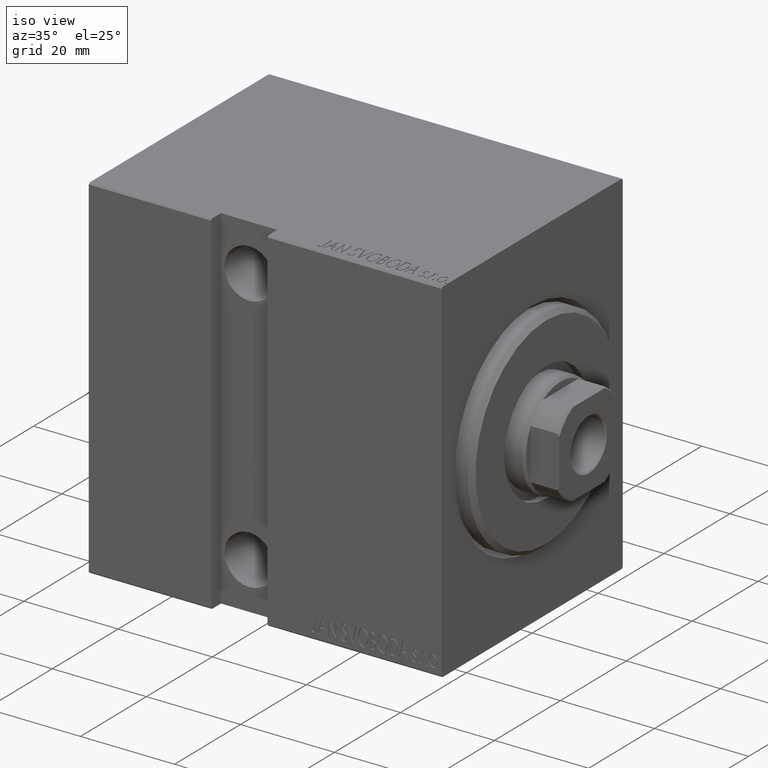
[diagram: clean part render]
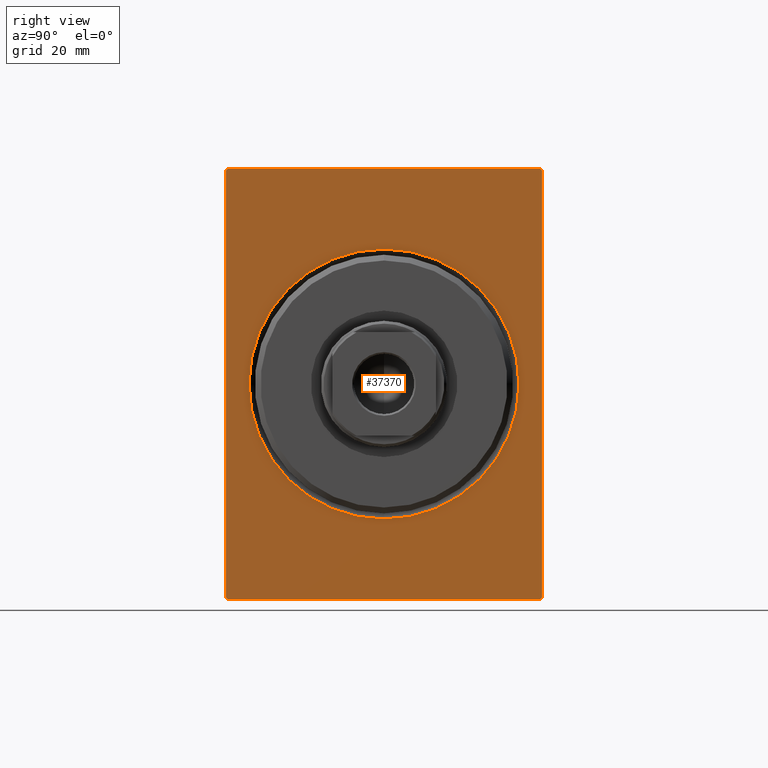
[diagram: tour spotlight — one face highlighted and labeled with its STEP entity id]
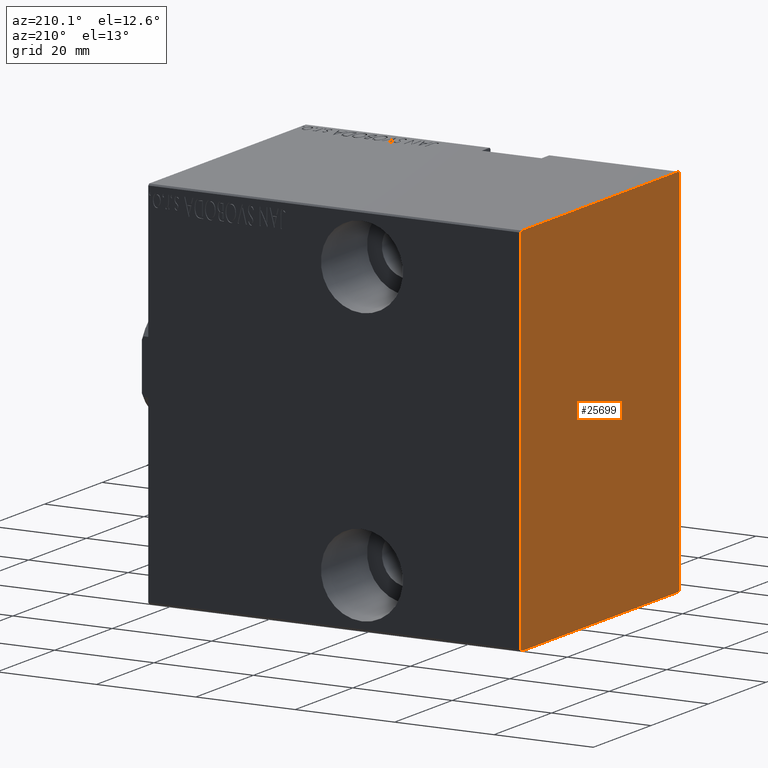
[diagram: tour spotlight — one face highlighted and labeled with its STEP entity id]
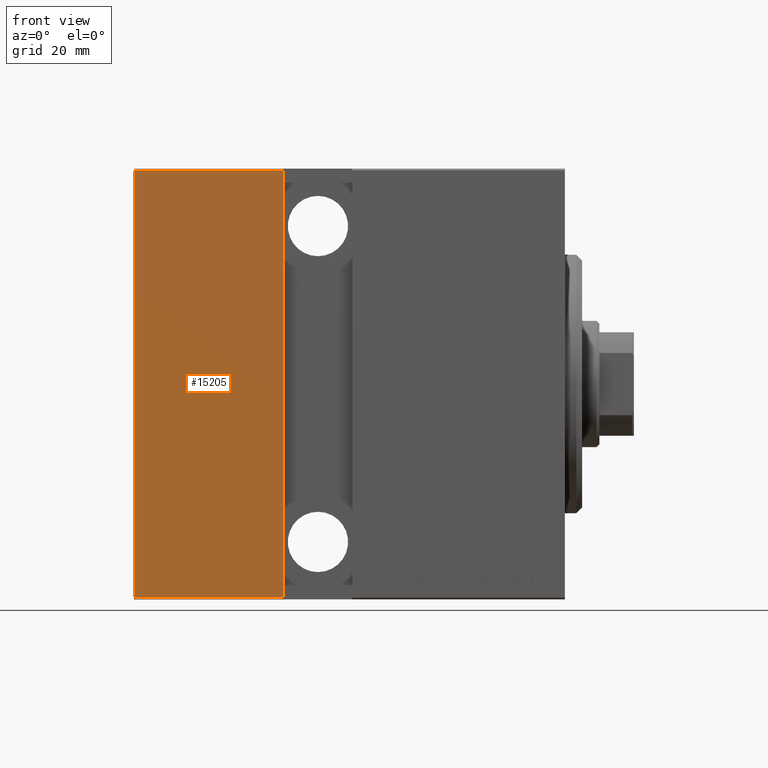
[diagram: tour spotlight — one face highlighted and labeled with its STEP entity id]
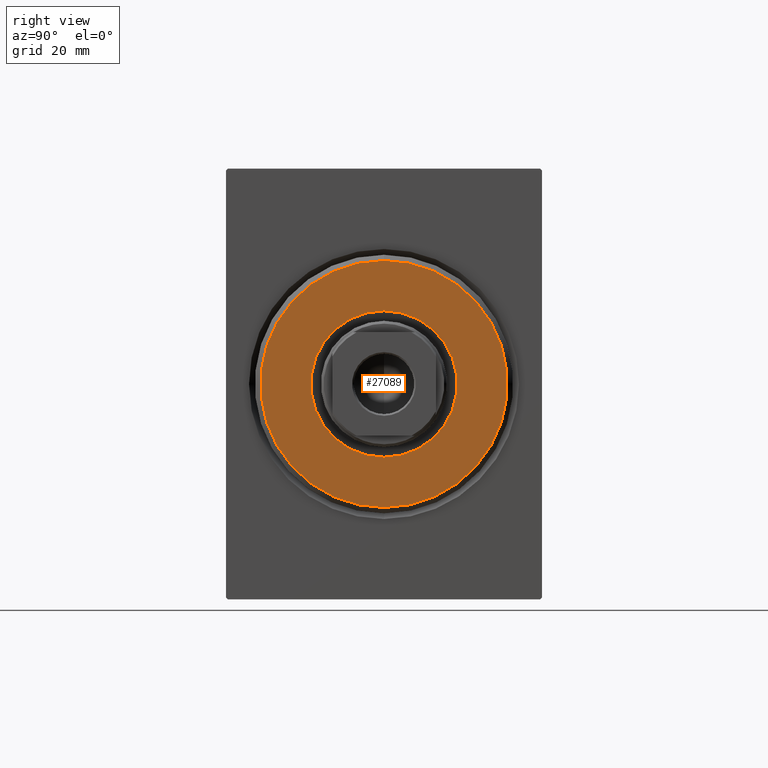
[diagram: tour spotlight — one face highlighted and labeled with its STEP entity id]
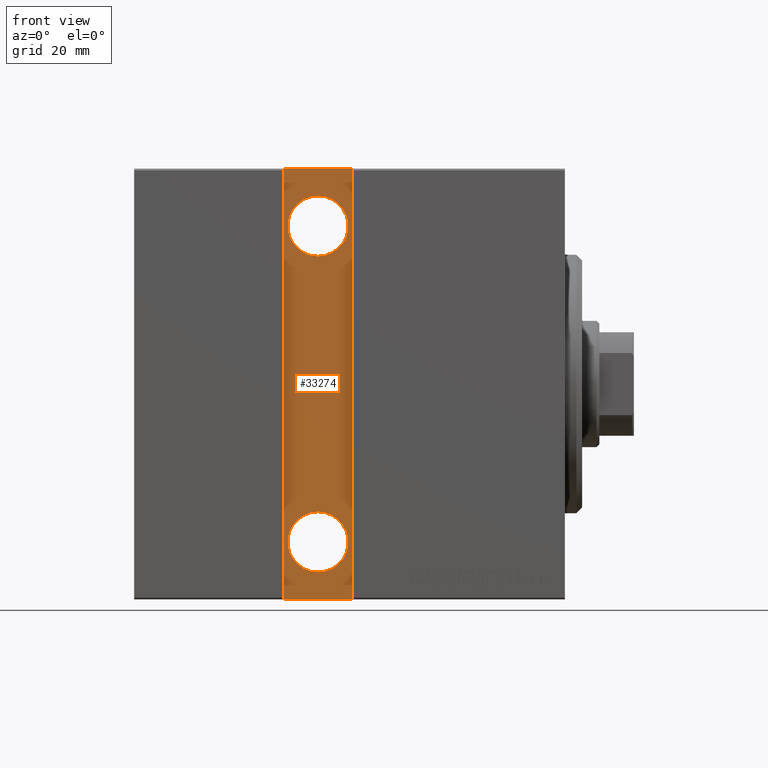
[diagram: tour spotlight — one face highlighted and labeled with its STEP entity id]
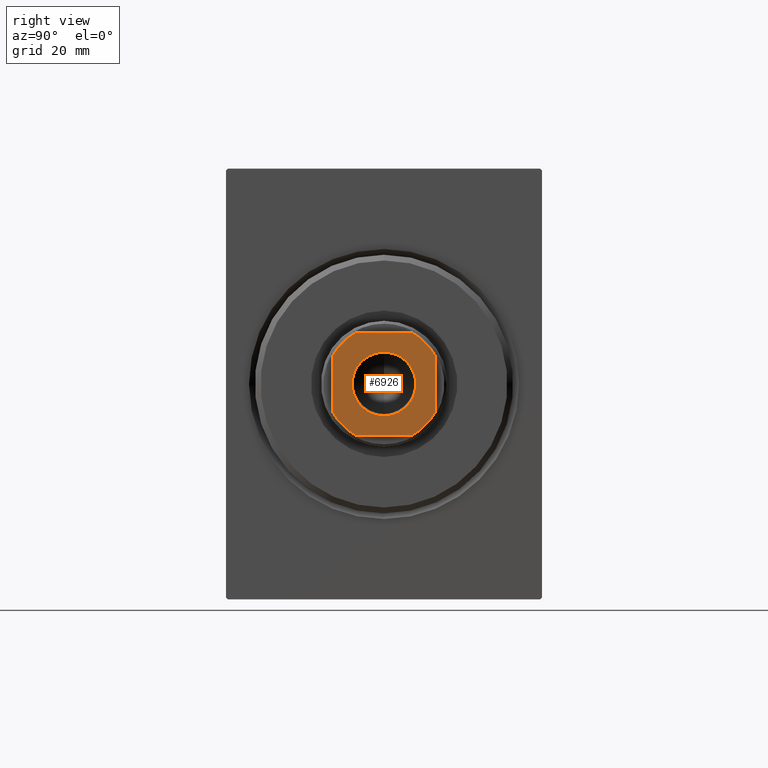
[diagram: tour spotlight — one face highlighted and labeled with its STEP entity id]
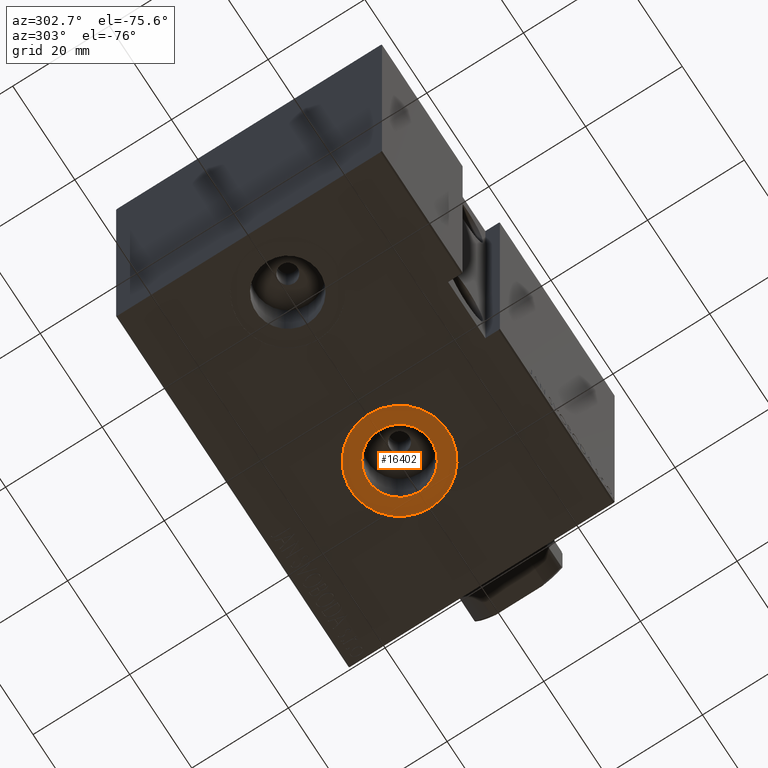
[diagram: tour spotlight — one face highlighted and labeled with its STEP entity id]
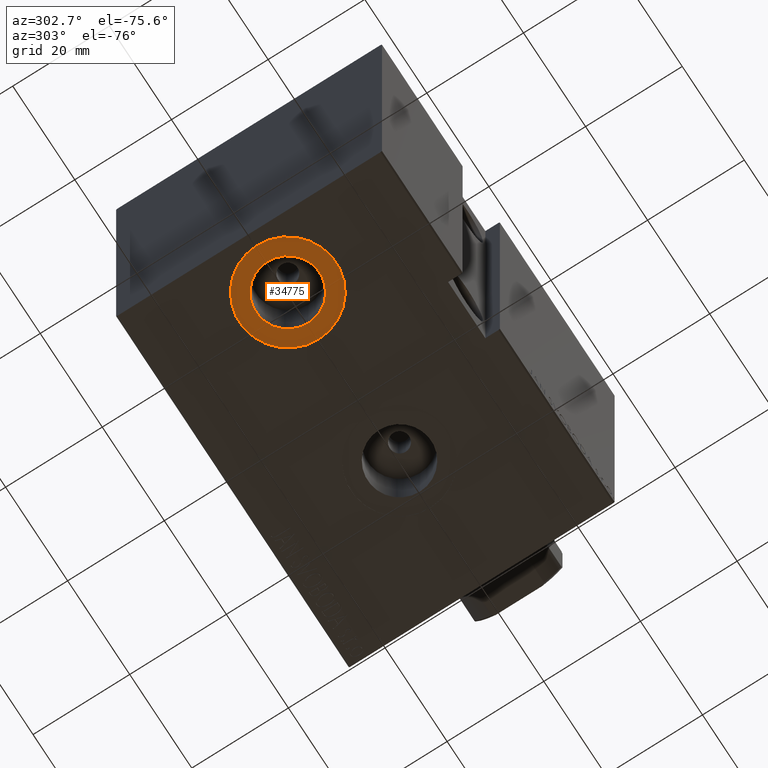
[diagram: tour spotlight — one face highlighted and labeled with its STEP entity id]
A machine part: a face-by-face anatomy tour. The part has 845 B-rep faces; the first image is the clean iso view, then the 8 largest visible faces are spotlighted one at a time (largest first), each with its STEP entity span.

Face 1 — right view, entity #37370. In plain terms, the highlighted planar face has unit normal (-1, 0, 0).
Definition (entity closure, byte-faithful):
#155 = CARTESIAN_POINT ( 'NONE',  ( 0.000000000000000000, 2.877919977996280715E-15, -23.50000000000000355 ) ) ;
#479 = VERTEX_POINT ( 'NONE', #7890 ) ;
#1505 = VERTEX_POINT ( 'NONE', #19122 ) ;
#1952 = LINE ( 'NONE', #24833, #28621 ) ;
#2173 = VECTOR ( 'NONE', #12814, 1000.000000000000000 ) ;
#2742 = VECTOR ( 'NONE', #35488, 1000.000000000000000 ) ;
#2763 = VERTEX_POINT ( 'NONE', #10412 ) ;
#4493 = DIRECTION ( 'NONE',  ( 0.000000000000000000, 0.000000000000000000, -1.000000000000000000 ) ) ;
#4976 = EDGE_LOOP ( 'NONE', ( #27891, #37800 ) ) ;
#5131 = AXIS2_PLACEMENT_3D ( 'NONE', #41469, #8624, #37607 ) ;
#5911 = CARTESIAN_POINT ( 'NONE',  ( 0.000000000000000000, 27.49999999999999645, 37.50000000000000711 ) ) ;
#5957 = VECTOR ( 'NONE', #13554, 1000.000000000000114 ) ;
#6078 = DIRECTION ( 'NONE',  ( 0.000000000000000000, 0.000000000000000000, -1.000000000000000000 ) ) ;
#6191 = EDGE_CURVE ( 'NONE', #18025, #8475, #6528, .T. ) ;
#6286 = ORIENTED_EDGE ( 'NONE', *, *, #31001, .F. ) ;
#6528 = CIRCLE ( 'NONE', #5131, 23.50000000000000355 ) ;
#7283 = EDGE_CURVE ( 'NONE', #479, #37008, #29175, .T. ) ;
#7362 = FACE_BOUND ( 'NONE', #4976, .T. ) ;
#7517 = DIRECTION ( 'NONE',  ( -0.000000000000000000, 0.7071067811865515695, 0.7071067811865435759 ) ) ;
#7739 = EDGE_LOOP ( 'NONE', ( #11058, #39362, #42311, #15611, #33319, #34031, #6286, #24181 ) ) ;
#7890 = CARTESIAN_POINT ( 'NONE',  ( 0.000000000000000000, -27.19999999999999218, -37.50000000000000711 ) ) ;
#8078 = CARTESIAN_POINT ( 'NONE',  ( 0.000000000000000000, 27.20000000000000284, 37.50000000000000711 ) ) ;
#8409 = PLANE ( 'NONE',  #41018 ) ;
#8475 = VERTEX_POINT ( 'NONE', #38750 ) ;
#8624 = DIRECTION ( 'NONE',  ( 1.000000000000000000, 0.000000000000000000, 0.000000000000000000 ) ) ;
#10412 = CARTESIAN_POINT ( 'NONE',  ( 0.000000000000000000, 27.49999999999999645, 37.20000000000000995 ) ) ;
#10454 = LINE ( 'NONE', #8078, #40243 ) ;
#11058 = ORIENTED_EDGE ( 'NONE', *, *, #25345, .F. ) ;
#11577 = VERTEX_POINT ( 'NONE', #21858 ) ;
#12814 = DIRECTION ( 'NONE',  ( 0.000000000000000000, -1.000000000000000000, -2.523234146875355998E-16 ) ) ;
#13554 = DIRECTION ( 'NONE',  ( -0.000000000000000000, -0.7071067811865474617, 0.7071067811865474617 ) ) ;
#15070 = VECTOR ( 'NONE', #7517, 999.9999999999998863 ) ;
#15611 = ORIENTED_EDGE ( 'NONE', *, *, #25560, .T. ) ;
#16201 = EDGE_CURVE ( 'NONE', #26997, #1505, #21322, .T. ) ;
#16508 = CARTESIAN_POINT ( 'NONE',  ( 0.000000000000000000, 27.19999999999999929, -37.50000000000000711 ) ) ;
#17295 = FACE_OUTER_BOUND ( 'NONE', #7739, .T. ) ;
#17367 = DIRECTION ( 'NONE',  ( -0.000000000000000000, 0.7071067811865474617, -0.7071067811865474617 ) ) ;
#18025 = VERTEX_POINT ( 'NONE', #155 ) ;
#18401 = DIRECTION ( 'NONE',  ( 1.000000000000000000, 0.000000000000000000, 0.000000000000000000 ) ) ;
#18788 = DIRECTION ( 'NONE',  ( 0.000000000000000000, 1.000000000000000000, 0.000000000000000000 ) ) ;
#19122 = CARTESIAN_POINT ( 'NONE',  ( 0.000000000000000000, -27.20000000000000284, 37.49999999999999289 ) ) ;
#19468 = DIRECTION ( 'NONE',  ( 0.000000000000000000, -0.7071067811865434649, -0.7071067811865516806 ) ) ;
#20082 = EDGE_CURVE ( 'NONE', #11577, #2763, #25958, .T. ) ;
#20265 = CARTESIAN_POINT ( 'NONE',  ( 0.000000000000000000, -27.19999999999999218, -37.50000000000000711 ) ) ;
#20702 = LINE ( 'NONE', #33672, #20855 ) ;
#20855 = VECTOR ( 'NONE', #4493, 1000.000000000000000 ) ;
#21322 = LINE ( 'NONE', #30618, #15070 ) ;
#21858 = CARTESIAN_POINT ( 'NONE',  ( 0.000000000000000000, 27.50000000000000355, -37.19999999999999574 ) ) ;
#22109 = LINE ( 'NONE', #5911, #2173 ) ;
#22257 = AXIS2_PLACEMENT_3D ( 'NONE', #22492, #18401, #6078 ) ;
#22492 = CARTESIAN_POINT ( 'NONE',  ( 0.000000000000000000, 0.000000000000000000, 0.000000000000000000 ) ) ;
#23550 = VECTOR ( 'NONE', #19468, 1000.000000000000000 ) ;
#23605 = CARTESIAN_POINT ( 'NONE',  ( 0.000000000000000000, -27.50000000000000000, -37.19999999999999574 ) ) ;
#24181 = ORIENTED_EDGE ( 'NONE', *, *, #16201, .T. ) ;
#24399 = CARTESIAN_POINT ( 'NONE',  ( 0.000000000000000000, 0.000000000000000000, 0.000000000000000000 ) ) ;
#24833 = CARTESIAN_POINT ( 'NONE',  ( 0.000000000000000000, -27.50000000000000000, -37.50000000000000711 ) ) ;
#25345 = EDGE_CURVE ( 'NONE', #40722, #1505, #22109, .T. ) ;
#25560 = EDGE_CURVE ( 'NONE', #11577, #39040, #39122, .T. ) ;
#25958 = LINE ( 'NONE', #41543, #2742 ) ;
#26997 = VERTEX_POINT ( 'NONE', #37915 ) ;
#27222 = DIRECTION ( 'NONE',  ( 1.000000000000000000, 0.000000000000000000, 0.000000000000000000 ) ) ;
#27850 = DIRECTION ( 'NONE',  ( 0.000000000000000000, 0.000000000000000000, -1.000000000000000000 ) ) ;
#27891 = ORIENTED_EDGE ( 'NONE', *, *, #28241, .T. ) ;
#28241 = EDGE_CURVE ( 'NONE', #8475, #18025, #28346, .T. ) ;
#28346 = CIRCLE ( 'NONE', #22257, 23.50000000000000355 ) ;
#28621 = VECTOR ( 'NONE', #18788, 1000.000000000000000 ) ;
#29175 = LINE ( 'NONE', #20265, #5957 ) ;
#30618 = CARTESIAN_POINT ( 'NONE',  ( 0.000000000000000000, -27.50000000000000000, 37.19999999999999574 ) ) ;
#31001 = EDGE_CURVE ( 'NONE', #26997, #37008, #20702, .T. ) ;
#33319 = ORIENTED_EDGE ( 'NONE', *, *, #40485, .F. ) ;
#33672 = CARTESIAN_POINT ( 'NONE',  ( 0.000000000000000000, -27.50000000000000000, 37.49999999999999289 ) ) ;
#34031 = ORIENTED_EDGE ( 'NONE', *, *, #7283, .T. ) ;
#35089 = EDGE_CURVE ( 'NONE', #40722, #2763, #10454, .T. ) ;
#35488 = DIRECTION ( 'NONE',  ( 0.000000000000000000, -9.251858538542970348E-17, 1.000000000000000000 ) ) ;
#35888 = CARTESIAN_POINT ( 'NONE',  ( 0.000000000000000000, 27.50000000000000355, -37.19999999999999574 ) ) ;
#37008 = VERTEX_POINT ( 'NONE', #23605 ) ;
#37370 = ADVANCED_FACE ( 'NONE', ( #7362, #17295 ), #8409, .F. ) ;
#37607 = DIRECTION ( 'NONE',  ( 0.000000000000000000, 0.000000000000000000, -1.000000000000000000 ) ) ;
#37800 = ORIENTED_EDGE ( 'NONE', *, *, #6191, .T. ) ;
#37915 = CARTESIAN_POINT ( 'NONE',  ( 0.000000000000000000, -27.50000000000000000, 37.19999999999999574 ) ) ;
#38750 = CARTESIAN_POINT ( 'NONE',  ( 0.000000000000000000, 0.000000000000000000, 23.50000000000000355 ) ) ;
#39040 = VERTEX_POINT ( 'NONE', #16508 ) ;
#39122 = LINE ( 'NONE', #35888, #23550 ) ;
#39362 = ORIENTED_EDGE ( 'NONE', *, *, #35089, .T. ) ;
#40243 = VECTOR ( 'NONE', #17367, 1000.000000000000114 ) ;
#40485 = EDGE_CURVE ( 'NONE', #479, #39040, #1952, .T. ) ;
#40722 = VERTEX_POINT ( 'NONE', #40752 ) ;
#40752 = CARTESIAN_POINT ( 'NONE',  ( 0.000000000000000000, 27.20000000000000284, 37.50000000000000711 ) ) ;
#41018 = AXIS2_PLACEMENT_3D ( 'NONE', #24399, #27222, #27850 ) ;
#41469 = CARTESIAN_POINT ( 'NONE',  ( 0.000000000000000000, 0.000000000000000000, 0.000000000000000000 ) ) ;
#41543 = CARTESIAN_POINT ( 'NONE',  ( 0.000000000000000000, 27.50000000000000355, -37.50000000000000711 ) ) ;
#42311 = ORIENTED_EDGE ( 'NONE', *, *, #20082, .F. ) ;

Face 2 — auxiliary view, entity #25699. In plain terms, the highlighted planar face has unit normal (-1, 0, 0).
Definition (entity closure, byte-faithful):
#186 = CARTESIAN_POINT ( 'NONE',  ( 75.00000000000000000, 27.20000000000000284, 37.50000000000000711 ) ) ;
#675 = CARTESIAN_POINT ( 'NONE',  ( 75.00000000000000000, -27.50000000000000000, -37.50000000000000711 ) ) ;
#1608 = EDGE_CURVE ( 'NONE', #27363, #28622, #20775, .T. ) ;
#2455 = CARTESIAN_POINT ( 'NONE',  ( 75.00000000000000000, -27.50000000000000000, 37.19999999999999574 ) ) ;
#3259 = DIRECTION ( 'NONE',  ( 1.000000000000000000, 0.000000000000000000, 0.000000000000000000 ) ) ;
#3649 = DIRECTION ( 'NONE',  ( 0.000000000000000000, -9.251858538542970348E-17, 1.000000000000000000 ) ) ;
#3910 = LINE ( 'NONE', #675, #10237 ) ;
#4332 = CARTESIAN_POINT ( 'NONE',  ( 75.00000000000000000, -27.19999999999999218, -37.50000000000000711 ) ) ;
#4467 = EDGE_CURVE ( 'NONE', #5598, #42629, #18697, .T. ) ;
#5185 = EDGE_LOOP ( 'NONE', ( #15250, #13867, #32874, #19264, #12700, #36527, #14762, #13233 ) ) ;
#5598 = VERTEX_POINT ( 'NONE', #2455 ) ;
#6906 = LINE ( 'NONE', #33252, #35582 ) ;
#6936 = CARTESIAN_POINT ( 'NONE',  ( 75.00000000000000000, 27.49999999999999645, 37.20000000000000995 ) ) ;
#7454 = VECTOR ( 'NONE', #31430, 1000.000000000000114 ) ;
#8253 = VERTEX_POINT ( 'NONE', #6936 ) ;
#8847 = VECTOR ( 'NONE', #31997, 999.9999999999998863 ) ;
#9938 = EDGE_CURVE ( 'NONE', #42629, #38356, #24603, .T. ) ;
#10162 = PLANE ( 'NONE',  #14612 ) ;
#10237 = VECTOR ( 'NONE', #20760, 1000.000000000000000 ) ;
#11351 = LINE ( 'NONE', #34263, #7454 ) ;
#12515 = CARTESIAN_POINT ( 'NONE',  ( 75.00000000000000000, 27.19999999999999929, -37.50000000000000711 ) ) ;
#12700 = ORIENTED_EDGE ( 'NONE', *, *, #24860, .T. ) ;
#13233 = ORIENTED_EDGE ( 'NONE', *, *, #9938, .T. ) ;
#13867 = ORIENTED_EDGE ( 'NONE', *, *, #1608, .T. ) ;
#13974 = EDGE_CURVE ( 'NONE', #8253, #38205, #11351, .T. ) ;
#14612 = AXIS2_PLACEMENT_3D ( 'NONE', #36961, #3259, #39767 ) ;
#14762 = ORIENTED_EDGE ( 'NONE', *, *, #4467, .T. ) ;
#15250 = ORIENTED_EDGE ( 'NONE', *, *, #16842, .T. ) ;
#15269 = CARTESIAN_POINT ( 'NONE',  ( 75.00000000000000000, -27.20000000000000284, 37.49999999999999289 ) ) ;
#16096 = EDGE_CURVE ( 'NONE', #22891, #5598, #25715, .T. ) ;
#16829 = CARTESIAN_POINT ( 'NONE',  ( 75.00000000000000000, 27.50000000000000355, -37.19999999999999574 ) ) ;
#16842 = EDGE_CURVE ( 'NONE', #38356, #27363, #3910, .T. ) ;
#18047 = VECTOR ( 'NONE', #18085, 1000.000000000000000 ) ;
#18085 = DIRECTION ( 'NONE',  ( 0.000000000000000000, -1.000000000000000000, -2.523234146875355998E-16 ) ) ;
#18697 = LINE ( 'NONE', #31458, #27824 ) ;
#19264 = ORIENTED_EDGE ( 'NONE', *, *, #13974, .T. ) ;
#20495 = VECTOR ( 'NONE', #31099, 1000.000000000000114 ) ;
#20760 = DIRECTION ( 'NONE',  ( 0.000000000000000000, 1.000000000000000000, 0.000000000000000000 ) ) ;
#20775 = LINE ( 'NONE', #28083, #29153 ) ;
#21738 = CARTESIAN_POINT ( 'NONE',  ( 75.00000000000000000, 27.49999999999999645, 37.50000000000000711 ) ) ;
#22001 = CARTESIAN_POINT ( 'NONE',  ( 75.00000000000000000, -32.34999999999999432, -32.34999999999999432 ) ) ;
#22891 = VERTEX_POINT ( 'NONE', #15269 ) ;
#24603 = LINE ( 'NONE', #22001, #20495 ) ;
#24860 = EDGE_CURVE ( 'NONE', #38205, #22891, #31888, .T. ) ;
#25383 = DIRECTION ( 'NONE',  ( 0.000000000000000000, 0.000000000000000000, -1.000000000000000000 ) ) ;
#25699 = ADVANCED_FACE ( 'NONE', ( #29820 ), #10162, .T. ) ;
#25715 = LINE ( 'NONE', #28314, #8847 ) ;
#27363 = VERTEX_POINT ( 'NONE', #12515 ) ;
#27824 = VECTOR ( 'NONE', #25383, 1000.000000000000000 ) ;
#28083 = CARTESIAN_POINT ( 'NONE',  ( 75.00000000000000000, 32.35000000000016485, -32.34999999999978826 ) ) ;
#28314 = CARTESIAN_POINT ( 'NONE',  ( 75.00000000000000000, -32.34999999999983800, 32.35000000000021458 ) ) ;
#28622 = VERTEX_POINT ( 'NONE', #16829 ) ;
#29153 = VECTOR ( 'NONE', #37828, 1000.000000000000000 ) ;
#29633 = CARTESIAN_POINT ( 'NONE',  ( 75.00000000000000000, -27.50000000000000000, -37.19999999999999574 ) ) ;
#29820 = FACE_OUTER_BOUND ( 'NONE', #5185, .T. ) ;
#31099 = DIRECTION ( 'NONE',  ( -0.000000000000000000, 0.7071067811865474617, -0.7071067811865474617 ) ) ;
#31430 = DIRECTION ( 'NONE',  ( -0.000000000000000000, -0.7071067811865474617, 0.7071067811865474617 ) ) ;
#31458 = CARTESIAN_POINT ( 'NONE',  ( 75.00000000000000000, -27.50000000000000000, 37.49999999999999289 ) ) ;
#31888 = LINE ( 'NONE', #21738, #18047 ) ;
#31997 = DIRECTION ( 'NONE',  ( 0.000000000000000000, -0.7071067811865515695, -0.7071067811865435759 ) ) ;
#32874 = ORIENTED_EDGE ( 'NONE', *, *, #41764, .T. ) ;
#33252 = CARTESIAN_POINT ( 'NONE',  ( 75.00000000000000000, 27.50000000000000355, -37.50000000000000711 ) ) ;
#34263 = CARTESIAN_POINT ( 'NONE',  ( 75.00000000000000000, 32.35000000000000142, 32.35000000000000142 ) ) ;
#35582 = VECTOR ( 'NONE', #3649, 1000.000000000000000 ) ;
#36527 = ORIENTED_EDGE ( 'NONE', *, *, #16096, .T. ) ;
#36961 = CARTESIAN_POINT ( 'NONE',  ( 75.00000000000000000, 0.000000000000000000, 0.000000000000000000 ) ) ;
#37828 = DIRECTION ( 'NONE',  ( -0.000000000000000000, 0.7071067811865434649, 0.7071067811865516806 ) ) ;
#38205 = VERTEX_POINT ( 'NONE', #186 ) ;
#38356 = VERTEX_POINT ( 'NONE', #4332 ) ;
#39767 = DIRECTION ( 'NONE',  ( 0.000000000000000000, 0.000000000000000000, -1.000000000000000000 ) ) ;
#41764 = EDGE_CURVE ( 'NONE', #28622, #8253, #6906, .T. ) ;
#42629 = VERTEX_POINT ( 'NONE', #29633 ) ;

Face 3 — front view, entity #15205. In plain terms, the highlighted planar face has unit normal (-0, 1, -0).
Definition (entity closure, byte-faithful):
#1406 = CARTESIAN_POINT ( 'NONE',  ( 75.00000000000000000, 27.50000000000000355, -37.19999999999999574 ) ) ;
#1463 = PLANE ( 'NONE',  #24692 ) ;
#1880 = DIRECTION ( 'NONE',  ( 0.000000000000000000, 9.251858538542970348E-17, -1.000000000000000000 ) ) ;
#3649 = DIRECTION ( 'NONE',  ( 0.000000000000000000, -9.251858538542970348E-17, 1.000000000000000000 ) ) ;
#4321 = ORIENTED_EDGE ( 'NONE', *, *, #41764, .F. ) ;
#4937 = VECTOR ( 'NONE', #11020, 1000.000000000000000 ) ;
#6226 = VERTEX_POINT ( 'NONE', #29353 ) ;
#6906 = LINE ( 'NONE', #33252, #35582 ) ;
#6936 = CARTESIAN_POINT ( 'NONE',  ( 75.00000000000000000, 27.49999999999999645, 37.20000000000000995 ) ) ;
#8253 = VERTEX_POINT ( 'NONE', #6936 ) ;
#10479 = ORIENTED_EDGE ( 'NONE', *, *, #24814, .T. ) ;
#10612 = CARTESIAN_POINT ( 'NONE',  ( 49.00000000000000000, 27.50000000000000000, 37.20000000000000995 ) ) ;
#11020 = DIRECTION ( 'NONE',  ( -9.251858538542978977E-17, -0.000000000000000000, -1.000000000000000000 ) ) ;
#12516 = VECTOR ( 'NONE', #15858, 1000.000000000000000 ) ;
#13540 = EDGE_LOOP ( 'NONE', ( #4321, #16214, #40490, #10479 ) ) ;
#14047 = CARTESIAN_POINT ( 'NONE',  ( 48.99999999999999289, 27.50000000000000000, -37.50000000000000711 ) ) ;
#14990 = DIRECTION ( 'NONE',  ( -1.000000000000000000, 0.000000000000000000, 0.000000000000000000 ) ) ;
#15205 = ADVANCED_FACE ( 'NONE', ( #35138 ), #1463, .F. ) ;
#15558 = VERTEX_POINT ( 'NONE', #10612 ) ;
#15858 = DIRECTION ( 'NONE',  ( 1.000000000000000000, 0.000000000000000000, 0.000000000000000000 ) ) ;
#16214 = ORIENTED_EDGE ( 'NONE', *, *, #27786, .T. ) ;
#16829 = CARTESIAN_POINT ( 'NONE',  ( 75.00000000000000000, 27.50000000000000355, -37.19999999999999574 ) ) ;
#21075 = LINE ( 'NONE', #1406, #38109 ) ;
#24692 = AXIS2_PLACEMENT_3D ( 'NONE', #24764, #38166, #1880 ) ;
#24764 = CARTESIAN_POINT ( 'NONE',  ( 75.00000000000000000, 27.50000000000000355, -37.50000000000000711 ) ) ;
#24814 = EDGE_CURVE ( 'NONE', #15558, #8253, #35741, .T. ) ;
#25838 = EDGE_CURVE ( 'NONE', #15558, #6226, #40616, .T. ) ;
#27786 = EDGE_CURVE ( 'NONE', #28622, #6226, #21075, .T. ) ;
#28622 = VERTEX_POINT ( 'NONE', #16829 ) ;
#29353 = CARTESIAN_POINT ( 'NONE',  ( 48.99999999999999289, 27.50000000000000000, -37.19999999999999574 ) ) ;
#32282 = CARTESIAN_POINT ( 'NONE',  ( 75.00000000000000000, 27.49999999999999645, 37.20000000000000995 ) ) ;
#33252 = CARTESIAN_POINT ( 'NONE',  ( 75.00000000000000000, 27.50000000000000355, -37.50000000000000711 ) ) ;
#35138 = FACE_OUTER_BOUND ( 'NONE', #13540, .T. ) ;
#35582 = VECTOR ( 'NONE', #3649, 1000.000000000000000 ) ;
#35741 = LINE ( 'NONE', #32282, #12516 ) ;
#38109 = VECTOR ( 'NONE', #14990, 1000.000000000000000 ) ;
#38166 = DIRECTION ( 'NONE',  ( 0.000000000000000000, -1.000000000000000000, -9.251858538542970348E-17 ) ) ;
#40490 = ORIENTED_EDGE ( 'NONE', *, *, #25838, .F. ) ;
#40616 = LINE ( 'NONE', #14047, #4937 ) ;
#41764 = EDGE_CURVE ( 'NONE', #28622, #8253, #6906, .T. ) ;

Face 4 — right view, entity #27089. In plain terms, the highlighted planar face has unit normal (1, 0, 0).
Definition (entity closure, byte-faithful):
#1389 = EDGE_CURVE ( 'NONE', #5263, #1877, #25683, .T. ) ;
#1453 = CIRCLE ( 'NONE', #13846, 12.75000000000000000 ) ;
#1877 = VERTEX_POINT ( 'NONE', #33476 ) ;
#3257 = CARTESIAN_POINT ( 'NONE',  ( 3.000000000000000000, 0.000000000000000000, 12.75000000000000000 ) ) ;
#3724 = AXIS2_PLACEMENT_3D ( 'NONE', #13530, #13318, #13102 ) ;
#5251 = EDGE_LOOP ( 'NONE', ( #38915, #32017 ) ) ;
#5263 = VERTEX_POINT ( 'NONE', #3257 ) ;
#6142 = CARTESIAN_POINT ( 'NONE',  ( 3.000000000000000000, 0.000000000000000000, 0.000000000000000000 ) ) ;
#7086 = AXIS2_PLACEMENT_3D ( 'NONE', #8128, #18469, #38129 ) ;
#8128 = CARTESIAN_POINT ( 'NONE',  ( 3.000000000000000000, 0.000000000000000000, 0.000000000000000000 ) ) ;
#9461 = EDGE_LOOP ( 'NONE', ( #20574, #40707 ) ) ;
#10014 = PLANE ( 'NONE',  #33966 ) ;
#10181 = CARTESIAN_POINT ( 'NONE',  ( 3.000000000000000000, 0.000000000000000000, 0.000000000000000000 ) ) ;
#11159 = CARTESIAN_POINT ( 'NONE',  ( 3.000000000000000000, 0.000000000000000000, 0.000000000000000000 ) ) ;
#13102 = DIRECTION ( 'NONE',  ( 0.000000000000000000, 0.000000000000000000, -1.000000000000000000 ) ) ;
#13318 = DIRECTION ( 'NONE',  ( 1.000000000000000000, -0.000000000000000000, 0.000000000000000000 ) ) ;
#13530 = CARTESIAN_POINT ( 'NONE',  ( 3.000000000000000000, 0.000000000000000000, 0.000000000000000000 ) ) ;
#13846 = AXIS2_PLACEMENT_3D ( 'NONE', #10181, #23784, #17101 ) ;
#14606 = DIRECTION ( 'NONE',  ( 0.000000000000000000, 0.000000000000000000, -1.000000000000000000 ) ) ;
#14756 = CIRCLE ( 'NONE', #3724, 21.49999999999998579 ) ;
#16728 = FACE_OUTER_BOUND ( 'NONE', #5251, .T. ) ;
#16778 = CARTESIAN_POINT ( 'NONE',  ( 3.000000000000000000, 0.000000000000000000, 21.49999999999998579 ) ) ;
#17101 = DIRECTION ( 'NONE',  ( 0.000000000000000000, 0.000000000000000000, -1.000000000000000000 ) ) ;
#18153 = EDGE_CURVE ( 'NONE', #32230, #38772, #23368, .T. ) ;
#18469 = DIRECTION ( 'NONE',  ( -1.000000000000000000, 0.000000000000000000, -0.000000000000000000 ) ) ;
#19542 = FACE_BOUND ( 'NONE', #9461, .T. ) ;
#20574 = ORIENTED_EDGE ( 'NONE', *, *, #1389, .T. ) ;
#22439 = EDGE_CURVE ( 'NONE', #1877, #5263, #1453, .T. ) ;
#23368 = CIRCLE ( 'NONE', #29601, 21.49999999999998579 ) ;
#23784 = DIRECTION ( 'NONE',  ( -1.000000000000000000, 0.000000000000000000, -0.000000000000000000 ) ) ;
#25683 = CIRCLE ( 'NONE', #7086, 12.75000000000000000 ) ;
#26645 = DIRECTION ( 'NONE',  ( 0.000000000000000000, 0.000000000000000000, -1.000000000000000000 ) ) ;
#27089 = ADVANCED_FACE ( 'NONE', ( #16728, #19542 ), #10014, .T. ) ;
#29601 = AXIS2_PLACEMENT_3D ( 'NONE', #11159, #30183, #14606 ) ;
#29682 = CARTESIAN_POINT ( 'NONE',  ( 3.000000000000000000, 2.694222958124176415E-15, -21.49999999999998579 ) ) ;
#30183 = DIRECTION ( 'NONE',  ( 1.000000000000000000, -0.000000000000000000, 0.000000000000000000 ) ) ;
#32017 = ORIENTED_EDGE ( 'NONE', *, *, #18153, .T. ) ;
#32230 = VERTEX_POINT ( 'NONE', #29682 ) ;
#32716 = DIRECTION ( 'NONE',  ( 1.000000000000000000, -0.000000000000000000, 0.000000000000000000 ) ) ;
#33476 = CARTESIAN_POINT ( 'NONE',  ( 3.000000000000000000, 1.561424668912874914E-15, -12.75000000000000000 ) ) ;
#33966 = AXIS2_PLACEMENT_3D ( 'NONE', #6142, #32716, #26645 ) ;
#35632 = EDGE_CURVE ( 'NONE', #38772, #32230, #14756, .T. ) ;
#38129 = DIRECTION ( 'NONE',  ( 0.000000000000000000, 0.000000000000000000, -1.000000000000000000 ) ) ;
#38772 = VERTEX_POINT ( 'NONE', #16778 ) ;
#38915 = ORIENTED_EDGE ( 'NONE', *, *, #35632, .T. ) ;
#40707 = ORIENTED_EDGE ( 'NONE', *, *, #22439, .T. ) ;

Face 5 — front view, entity #33274. In plain terms, the highlighted planar face has unit normal (0, 1, 0).
Definition (entity closure, byte-faithful):
#337 = DIRECTION ( 'NONE',  ( 1.000000000000000000, -0.000000000000000000, -0.000000000000000000 ) ) ;
#385 = DIRECTION ( 'NONE',  ( -1.000000000000000000, 0.000000000000000000, 0.000000000000000000 ) ) ;
#810 = VECTOR ( 'NONE', #337, 1000.000000000000000 ) ;
#847 = CIRCLE ( 'NONE', #25666, 5.249999999999997335 ) ;
#1707 = VERTEX_POINT ( 'NONE', #16849 ) ;
#3637 = FACE_OUTER_BOUND ( 'NONE', #30337, .T. ) ;
#4289 = AXIS2_PLACEMENT_3D ( 'NONE', #36176, #38232, #28282 ) ;
#5088 = DIRECTION ( 'NONE',  ( 0.000000000000000000, 0.000000000000000000, -1.000000000000000000 ) ) ;
#6756 = ORIENTED_EDGE ( 'NONE', *, *, #27171, .T. ) ;
#7425 = VERTEX_POINT ( 'NONE', #9412 ) ;
#7820 = CARTESIAN_POINT ( 'NONE',  ( 43.00000000000001421, 24.50000000000000000, 32.74999999999999289 ) ) ;
#8507 = CARTESIAN_POINT ( 'NONE',  ( 43.00000000000001421, 24.50000000000000000, -32.74999999999999289 ) ) ;
#8950 = CARTESIAN_POINT ( 'NONE',  ( 43.00000000000001421, 24.50000000000000000, 22.25000000000000355 ) ) ;
#8956 = DIRECTION ( 'NONE',  ( 0.000000000000000000, -1.000000000000000000, 0.000000000000000000 ) ) ;
#9129 = EDGE_CURVE ( 'NONE', #1707, #30341, #16811, .T. ) ;
#9412 = CARTESIAN_POINT ( 'NONE',  ( 37.00000000000001421, 24.50000000000000000, 37.49999999999993605 ) ) ;
#9828 = VECTOR ( 'NONE', #12719, 1000.000000000000000 ) ;
#10327 = FACE_BOUND ( 'NONE', #37592, .T. ) ;
#12263 = VERTEX_POINT ( 'NONE', #25368 ) ;
#12719 = DIRECTION ( 'NONE',  ( 1.850371707708595795E-16, 0.000000000000000000, 1.000000000000000000 ) ) ;
#13140 = CARTESIAN_POINT ( 'NONE',  ( 37.00000000000000000, 24.50000000000000000, -37.50000000000000711 ) ) ;
#14046 = VERTEX_POINT ( 'NONE', #8950 ) ;
#16429 = EDGE_CURVE ( 'NONE', #12263, #1707, #18498, .T. ) ;
#16606 = DIRECTION ( 'NONE',  ( 0.000000000000000000, -0.000000000000000000, -1.000000000000000000 ) ) ;
#16811 = LINE ( 'NONE', #26938, #38415 ) ;
#16849 = CARTESIAN_POINT ( 'NONE',  ( 49.00000000000000000, 24.50000000000000355, -37.50000000000000711 ) ) ;
#17396 = LINE ( 'NONE', #26892, #810 ) ;
#17400 = CIRCLE ( 'NONE', #4289, 5.249999999999997335 ) ;
#18498 = LINE ( 'NONE', #35345, #31637 ) ;
#19345 = VERTEX_POINT ( 'NONE', #8507 ) ;
#20307 = ORIENTED_EDGE ( 'NONE', *, *, #42118, .T. ) ;
#20456 = CARTESIAN_POINT ( 'NONE',  ( 43.00000000000001421, 24.50000000000000000, -27.50000000000000000 ) ) ;
#20640 = CARTESIAN_POINT ( 'NONE',  ( 43.00000000000001421, 24.50000000000000000, -27.50000000000000000 ) ) ;
#21499 = CIRCLE ( 'NONE', #38757, 5.249999999999994671 ) ;
#25137 = EDGE_CURVE ( 'NONE', #19345, #42084, #21499, .T. ) ;
#25139 = EDGE_CURVE ( 'NONE', #7425, #12263, #17396, .T. ) ;
#25368 = CARTESIAN_POINT ( 'NONE',  ( 49.00000000000000000, 24.50000000000000000, 37.49999999999993605 ) ) ;
#25666 = AXIS2_PLACEMENT_3D ( 'NONE', #30846, #33668, #33881 ) ;
#25942 = EDGE_CURVE ( 'NONE', #40284, #14046, #847, .T. ) ;
#26020 = ORIENTED_EDGE ( 'NONE', *, *, #16429, .T. ) ;
#26892 = CARTESIAN_POINT ( 'NONE',  ( 49.00000000000000000, 24.50000000000000000, 37.49999999999993605 ) ) ;
#26938 = CARTESIAN_POINT ( 'NONE',  ( 48.99999999999999289, 24.50000000000000000, -37.50000000000000711 ) ) ;
#27171 = EDGE_CURVE ( 'NONE', #14046, #40284, #17400, .T. ) ;
#27348 = CARTESIAN_POINT ( 'NONE',  ( 43.00000000000001421, 24.50000000000000000, -22.25000000000000355 ) ) ;
#27774 = AXIS2_PLACEMENT_3D ( 'NONE', #40140, #29567, #16606 ) ;
#28282 = DIRECTION ( 'NONE',  ( 0.000000000000000000, 0.000000000000000000, -1.000000000000000000 ) ) ;
#28607 = EDGE_CURVE ( 'NONE', #30341, #7425, #29998, .T. ) ;
#29377 = CIRCLE ( 'NONE', #41814, 5.249999999999994671 ) ;
#29567 = DIRECTION ( 'NONE',  ( 0.000000000000000000, -1.000000000000000000, 0.000000000000000000 ) ) ;
#29998 = LINE ( 'NONE', #13140, #9828 ) ;
#30211 = PLANE ( 'NONE',  #27774 ) ;
#30337 = EDGE_LOOP ( 'NONE', ( #32855, #39716, #26020, #31621 ) ) ;
#30341 = VERTEX_POINT ( 'NONE', #32111 ) ;
#30846 = CARTESIAN_POINT ( 'NONE',  ( 43.00000000000001421, 24.50000000000000000, 27.50000000000000000 ) ) ;
#31621 = ORIENTED_EDGE ( 'NONE', *, *, #9129, .T. ) ;
#31637 = VECTOR ( 'NONE', #41623, 1000.000000000000000 ) ;
#32111 = CARTESIAN_POINT ( 'NONE',  ( 37.00000000000000000, 24.50000000000000000, -37.50000000000000711 ) ) ;
#32855 = ORIENTED_EDGE ( 'NONE', *, *, #28607, .T. ) ;
#33274 = ADVANCED_FACE ( 'NONE', ( #36063, #10327, #3637 ), #30211, .F. ) ;
#33668 = DIRECTION ( 'NONE',  ( 0.000000000000000000, -1.000000000000000000, 0.000000000000000000 ) ) ;
#33822 = DIRECTION ( 'NONE',  ( 0.000000000000000000, 0.000000000000000000, -1.000000000000000000 ) ) ;
#33881 = DIRECTION ( 'NONE',  ( 0.000000000000000000, 0.000000000000000000, -1.000000000000000000 ) ) ;
#35085 = EDGE_LOOP ( 'NONE', ( #41029, #6756 ) ) ;
#35345 = CARTESIAN_POINT ( 'NONE',  ( 48.99999999999999289, 24.50000000000000000, -37.50000000000000711 ) ) ;
#36063 = FACE_BOUND ( 'NONE', #35085, .T. ) ;
#36166 = ORIENTED_EDGE ( 'NONE', *, *, #25137, .T. ) ;
#36176 = CARTESIAN_POINT ( 'NONE',  ( 43.00000000000001421, 24.50000000000000000, 27.50000000000000000 ) ) ;
#36635 = DIRECTION ( 'NONE',  ( 0.000000000000000000, -1.000000000000000000, 0.000000000000000000 ) ) ;
#37592 = EDGE_LOOP ( 'NONE', ( #20307, #36166 ) ) ;
#38232 = DIRECTION ( 'NONE',  ( 0.000000000000000000, -1.000000000000000000, 0.000000000000000000 ) ) ;
#38415 = VECTOR ( 'NONE', #385, 1000.000000000000000 ) ;
#38757 = AXIS2_PLACEMENT_3D ( 'NONE', #20640, #36635, #33822 ) ;
#39716 = ORIENTED_EDGE ( 'NONE', *, *, #25139, .T. ) ;
#40140 = CARTESIAN_POINT ( 'NONE',  ( 0.000000000000000000, 24.50000000000000000, 0.000000000000000000 ) ) ;
#40284 = VERTEX_POINT ( 'NONE', #7820 ) ;
#41029 = ORIENTED_EDGE ( 'NONE', *, *, #25942, .T. ) ;
#41623 = DIRECTION ( 'NONE',  ( -9.251858538542978977E-17, -0.000000000000000000, -1.000000000000000000 ) ) ;
#41814 = AXIS2_PLACEMENT_3D ( 'NONE', #20456, #8956, #5088 ) ;
#42084 = VERTEX_POINT ( 'NONE', #27348 ) ;
#42118 = EDGE_CURVE ( 'NONE', #42084, #19345, #29377, .T. ) ;

Face 6 — right view, entity #6926. In plain terms, the highlighted planar face has unit normal (1, 0, -0).
Definition (entity closure, byte-faithful):
#803 = ORIENTED_EDGE ( 'NONE', *, *, #26183, .T. ) ;
#1336 = CIRCLE ( 'NONE', #25451, 5.550000000000013145 ) ;
#1646 = VERTEX_POINT ( 'NONE', #8033 ) ;
#1810 = DIRECTION ( 'NONE',  ( 1.000000000000000000, 0.000000000000000000, 0.000000000000000000 ) ) ;
#1828 = CARTESIAN_POINT ( 'NONE',  ( 0.000000000000000000, 0.000000000000000000, 77.00000000000001421 ) ) ;
#2222 = EDGE_LOOP ( 'NONE', ( #25731, #16964, #22812, #31141, #803, #35609, #19937, #27141 ) ) ;
#2898 = DIRECTION ( 'NONE',  ( -1.927470528863119049E-16, 1.000000000000000000, -0.000000000000000000 ) ) ;
#4876 = VECTOR ( 'NONE', #33568, 1000.000000000000000 ) ;
#5006 = CARTESIAN_POINT ( 'NONE',  ( -4.799999999999995381, -9.000000000000001776, 77.00000000000001421 ) ) ;
#5466 = PLANE ( 'NONE',  #7921 ) ;
#6926 = ADVANCED_FACE ( 'NONE', ( #35503, #14770 ), #5466, .T. ) ;
#7035 = CARTESIAN_POINT ( 'NONE',  ( 0.000000000000000000, 0.000000000000000000, 77.00000000000001421 ) ) ;
#7793 = VERTEX_POINT ( 'NONE', #29014 ) ;
#7921 = AXIS2_PLACEMENT_3D ( 'NONE', #41345, #22103, #1810 ) ;
#7954 = EDGE_LOOP ( 'NONE', ( #13645, #36430 ) ) ;
#8033 = CARTESIAN_POINT ( 'NONE',  ( -4.799999999999990941, 8.999999999999998224, 77.00000000000001421 ) ) ;
#8419 = CARTESIAN_POINT ( 'NONE',  ( 4.800000000000006928, -9.000000000000001776, 77.00000000000001421 ) ) ;
#8464 = CARTESIAN_POINT ( 'NONE',  ( 9.000000000000001776, -4.800000000000007816, 77.00000000000001421 ) ) ;
#8540 = CARTESIAN_POINT ( 'NONE',  ( -8.999999999999998224, -4.799999999999999822, 77.00000000000001421 ) ) ;
#9417 = VERTEX_POINT ( 'NONE', #17554 ) ;
#9638 = VERTEX_POINT ( 'NONE', #5006 ) ;
#10051 = DIRECTION ( 'NONE',  ( -0.000000000000000000, 0.000000000000000000, 1.000000000000000000 ) ) ;
#10343 = CARTESIAN_POINT ( 'NONE',  ( -9.000000000000001776, 4.799999999999986500, 77.00000000000001421 ) ) ;
#10596 = VERTEX_POINT ( 'NONE', #26202 ) ;
#11274 = EDGE_CURVE ( 'NONE', #38088, #28092, #17066, .T. ) ;
#13312 = VECTOR ( 'NONE', #19043, 1000.000000000000000 ) ;
#13506 = CARTESIAN_POINT ( 'NONE',  ( 0.000000000000000000, 0.000000000000000000, 77.00000000000001421 ) ) ;
#13645 = ORIENTED_EDGE ( 'NONE', *, *, #16150, .T. ) ;
#14770 = FACE_OUTER_BOUND ( 'NONE', #2222, .T. ) ;
#14844 = CARTESIAN_POINT ( 'NONE',  ( 4.800000000000012257, 8.999999999999998224, 77.00000000000001421 ) ) ;
#16150 = EDGE_CURVE ( 'NONE', #9417, #10596, #16442, .T. ) ;
#16442 = CIRCLE ( 'NONE', #21292, 5.550000000000013145 ) ;
#16490 = EDGE_CURVE ( 'NONE', #7793, #33382, #35093, .T. ) ;
#16726 = VECTOR ( 'NONE', #25722, 1000.000000000000000 ) ;
#16939 = LINE ( 'NONE', #30110, #4876 ) ;
#16964 = ORIENTED_EDGE ( 'NONE', *, *, #16490, .T. ) ;
#17066 = CIRCLE ( 'NONE', #32232, 10.20000000000000462 ) ;
#17513 = CARTESIAN_POINT ( 'NONE',  ( 0.000000000000000000, 0.000000000000000000, 77.00000000000001421 ) ) ;
#17526 = LINE ( 'NONE', #19331, #36033 ) ;
#17554 = CARTESIAN_POINT ( 'NONE',  ( 5.550000000000013145, 0.000000000000000000, 77.00000000000001421 ) ) ;
#17596 = VERTEX_POINT ( 'NONE', #8540 ) ;
#17843 = DIRECTION ( 'NONE',  ( 1.000000000000000000, 0.000000000000000000, 0.000000000000000000 ) ) ;
#18149 = DIRECTION ( 'NONE',  ( -0.000000000000000000, 0.000000000000000000, 1.000000000000000000 ) ) ;
#18603 = CARTESIAN_POINT ( 'NONE',  ( 0.000000000000000000, 0.000000000000000000, 77.00000000000001421 ) ) ;
#19043 = DIRECTION ( 'NONE',  ( -1.000000000000000000, -0.000000000000000000, -0.000000000000000000 ) ) ;
#19158 = EDGE_CURVE ( 'NONE', #10596, #9417, #1336, .T. ) ;
#19331 = CARTESIAN_POINT ( 'NONE',  ( 8.999999999999998224, 8.999999999999998224, 77.00000000000001421 ) ) ;
#19904 = AXIS2_PLACEMENT_3D ( 'NONE', #13506, #10051, #23438 ) ;
#19937 = ORIENTED_EDGE ( 'NONE', *, *, #22192, .T. ) ;
#20754 = DIRECTION ( 'NONE',  ( 1.000000000000000000, 0.000000000000000000, 0.000000000000000000 ) ) ;
#21043 = AXIS2_PLACEMENT_3D ( 'NONE', #17513, #18149, #20754 ) ;
#21127 = AXIS2_PLACEMENT_3D ( 'NONE', #40801, #27610, #36929 ) ;
#21292 = AXIS2_PLACEMENT_3D ( 'NONE', #18603, #32213, #41731 ) ;
#22103 = DIRECTION ( 'NONE',  ( -0.000000000000000000, 0.000000000000000000, 1.000000000000000000 ) ) ;
#22192 = EDGE_CURVE ( 'NONE', #9638, #38088, #16939, .T. ) ;
#22703 = CARTESIAN_POINT ( 'NONE',  ( -9.000000000000001776, 8.999999999999998224, 77.00000000000001421 ) ) ;
#22812 = ORIENTED_EDGE ( 'NONE', *, *, #32891, .T. ) ;
#23438 = DIRECTION ( 'NONE',  ( 1.000000000000000000, 0.000000000000000000, 0.000000000000000000 ) ) ;
#25217 = CIRCLE ( 'NONE', #21127, 10.19999999999999396 ) ;
#25451 = AXIS2_PLACEMENT_3D ( 'NONE', #7035, #36418, #29706 ) ;
#25722 = DIRECTION ( 'NONE',  ( 1.927470528863119049E-16, -1.000000000000000000, 0.000000000000000000 ) ) ;
#25731 = ORIENTED_EDGE ( 'NONE', *, *, #27125, .T. ) ;
#26183 = EDGE_CURVE ( 'NONE', #41672, #17596, #31162, .T. ) ;
#26202 = CARTESIAN_POINT ( 'NONE',  ( -5.550000000000013145, 6.796789735267826558E-16, 77.00000000000001421 ) ) ;
#27125 = EDGE_CURVE ( 'NONE', #28092, #7793, #17526, .T. ) ;
#27141 = ORIENTED_EDGE ( 'NONE', *, *, #11274, .T. ) ;
#27610 = DIRECTION ( 'NONE',  ( -0.000000000000000000, 0.000000000000000000, 1.000000000000000000 ) ) ;
#27919 = CIRCLE ( 'NONE', #21043, 10.19999999999999929 ) ;
#28092 = VERTEX_POINT ( 'NONE', #8464 ) ;
#29014 = CARTESIAN_POINT ( 'NONE',  ( 8.999999999999998224, 4.800000000000010481, 77.00000000000001421 ) ) ;
#29706 = DIRECTION ( 'NONE',  ( 1.000000000000000000, 0.000000000000000000, 0.000000000000000000 ) ) ;
#30110 = CARTESIAN_POINT ( 'NONE',  ( -8.999999999999998224, -9.000000000000001776, 77.00000000000001421 ) ) ;
#31141 = ORIENTED_EDGE ( 'NONE', *, *, #41822, .T. ) ;
#31162 = LINE ( 'NONE', #32649, #16726 ) ;
#31849 = DIRECTION ( 'NONE',  ( -0.000000000000000000, 0.000000000000000000, 1.000000000000000000 ) ) ;
#32213 = DIRECTION ( 'NONE',  ( 0.000000000000000000, -0.000000000000000000, -1.000000000000000000 ) ) ;
#32232 = AXIS2_PLACEMENT_3D ( 'NONE', #1828, #31849, #17843 ) ;
#32649 = CARTESIAN_POINT ( 'NONE',  ( -9.000000000000001776, 8.999999999999998224, 77.00000000000001421 ) ) ;
#32891 = EDGE_CURVE ( 'NONE', #33382, #1646, #38477, .T. ) ;
#33382 = VERTEX_POINT ( 'NONE', #14844 ) ;
#33568 = DIRECTION ( 'NONE',  ( 1.000000000000000000, 0.000000000000000000, 0.000000000000000000 ) ) ;
#35093 = CIRCLE ( 'NONE', #19904, 10.20000000000000462 ) ;
#35503 = FACE_BOUND ( 'NONE', #7954, .T. ) ;
#35609 = ORIENTED_EDGE ( 'NONE', *, *, #38336, .T. ) ;
#36033 = VECTOR ( 'NONE', #2898, 1000.000000000000000 ) ;
#36418 = DIRECTION ( 'NONE',  ( 0.000000000000000000, -0.000000000000000000, -1.000000000000000000 ) ) ;
#36430 = ORIENTED_EDGE ( 'NONE', *, *, #19158, .T. ) ;
#36929 = DIRECTION ( 'NONE',  ( 1.000000000000000000, 0.000000000000000000, 0.000000000000000000 ) ) ;
#38088 = VERTEX_POINT ( 'NONE', #8419 ) ;
#38336 = EDGE_CURVE ( 'NONE', #17596, #9638, #27919, .T. ) ;
#38477 = LINE ( 'NONE', #22703, #13312 ) ;
#40801 = CARTESIAN_POINT ( 'NONE',  ( 0.000000000000000000, 0.000000000000000000, 77.00000000000001421 ) ) ;
#41345 = CARTESIAN_POINT ( 'NONE',  ( 0.000000000000000000, 0.000000000000000000, 77.00000000000001421 ) ) ;
#41672 = VERTEX_POINT ( 'NONE', #10343 ) ;
#41731 = DIRECTION ( 'NONE',  ( 1.000000000000000000, 0.000000000000000000, 0.000000000000000000 ) ) ;
#41822 = EDGE_CURVE ( 'NONE', #1646, #41672, #25217, .T. ) ;

Face 7 — auxiliary view, entity #16402. In plain terms, the highlighted planar face has unit normal (-0, 0, -1).
Definition (entity closure, byte-faithful):
#265 = ORIENTED_EDGE ( 'NONE', *, *, #12594, .T. ) ;
#1517 = DIRECTION ( 'NONE',  ( -1.000000000000000000, 0.000000000000000000, 0.000000000000000000 ) ) ;
#1641 = VERTEX_POINT ( 'NONE', #37626 ) ;
#2816 = EDGE_LOOP ( 'NONE', ( #265, #9340 ) ) ;
#3118 = CARTESIAN_POINT ( 'NONE',  ( 26.50000000000000000, -2.726986211408916281E-15, -37.40000000000000568 ) ) ;
#3338 = AXIS2_PLACEMENT_3D ( 'NONE', #18840, #22075, #32109 ) ;
#4755 = CARTESIAN_POINT ( 'NONE',  ( 26.50000000000000000, -2.726986211408916281E-15, -37.40000000000000568 ) ) ;
#5359 = AXIS2_PLACEMENT_3D ( 'NONE', #17378, #30554, #27929 ) ;
#8735 = DIRECTION ( 'NONE',  ( 0.000000000000000000, 0.000000000000000000, -1.000000000000000000 ) ) ;
#9340 = ORIENTED_EDGE ( 'NONE', *, *, #38370, .T. ) ;
#11712 = FACE_BOUND ( 'NONE', #16619, .T. ) ;
#12594 = EDGE_CURVE ( 'NONE', #1641, #34342, #17816, .T. ) ;
#12726 = AXIS2_PLACEMENT_3D ( 'NONE', #4755, #31112, #1517 ) ;
#15823 = VERTEX_POINT ( 'NONE', #18785 ) ;
#16289 = DIRECTION ( 'NONE',  ( 0.000000000000000000, 0.000000000000000000, -1.000000000000000000 ) ) ;
#16402 = ADVANCED_FACE ( 'NONE', ( #11712, #38067 ), #21655, .T. ) ;
#16619 = EDGE_LOOP ( 'NONE', ( #41948, #36201 ) ) ;
#17378 = CARTESIAN_POINT ( 'NONE',  ( 26.50000000000000000, -2.726986211408916281E-15, -37.40000000000000568 ) ) ;
#17816 = CIRCLE ( 'NONE', #5359, 9.999999999999998224 ) ;
#18785 = CARTESIAN_POINT ( 'NONE',  ( 33.07999999999999829, -1.921168617569957634E-15, -37.40000000000000568 ) ) ;
#18840 = CARTESIAN_POINT ( 'NONE',  ( 0.000000000000000000, 0.000000000000000000, -37.40000000000000568 ) ) ;
#19460 = AXIS2_PLACEMENT_3D ( 'NONE', #38330, #8735, #21915 ) ;
#21655 = PLANE ( 'NONE',  #3338 ) ;
#21915 = DIRECTION ( 'NONE',  ( -1.000000000000000000, 0.000000000000000000, 0.000000000000000000 ) ) ;
#22075 = DIRECTION ( 'NONE',  ( 0.000000000000000000, 0.000000000000000000, -1.000000000000000000 ) ) ;
#22225 = AXIS2_PLACEMENT_3D ( 'NONE', #3118, #16289, #29470 ) ;
#22410 = CIRCLE ( 'NONE', #12726, 9.999999999999998224 ) ;
#23584 = CIRCLE ( 'NONE', #22225, 6.580000000000002736 ) ;
#24575 = CARTESIAN_POINT ( 'NONE',  ( 36.50000000000000000, -1.502339412261563813E-15, -37.40000000000000568 ) ) ;
#27032 = EDGE_CURVE ( 'NONE', #41083, #15823, #27040, .T. ) ;
#27040 = CIRCLE ( 'NONE', #19460, 6.580000000000002736 ) ;
#27139 = EDGE_CURVE ( 'NONE', #15823, #41083, #23584, .T. ) ;
#27929 = DIRECTION ( 'NONE',  ( -1.000000000000000000, 0.000000000000000000, 0.000000000000000000 ) ) ;
#29470 = DIRECTION ( 'NONE',  ( -1.000000000000000000, 0.000000000000000000, 0.000000000000000000 ) ) ;
#30554 = DIRECTION ( 'NONE',  ( 0.000000000000000000, 0.000000000000000000, -1.000000000000000000 ) ) ;
#31112 = DIRECTION ( 'NONE',  ( 0.000000000000000000, 0.000000000000000000, -1.000000000000000000 ) ) ;
#32109 = DIRECTION ( 'NONE',  ( -1.000000000000000000, 0.000000000000000000, -0.000000000000000000 ) ) ;
#34015 = CARTESIAN_POINT ( 'NONE',  ( 19.91999999999999815, -2.726986211408916281E-15, -37.40000000000000568 ) ) ;
#34342 = VERTEX_POINT ( 'NONE', #24575 ) ;
#36201 = ORIENTED_EDGE ( 'NONE', *, *, #27139, .F. ) ;
#37626 = CARTESIAN_POINT ( 'NONE',  ( 16.50000000000000000, -2.726986211408916281E-15, -37.40000000000000568 ) ) ;
#38067 = FACE_OUTER_BOUND ( 'NONE', #2816, .T. ) ;
#38330 = CARTESIAN_POINT ( 'NONE',  ( 26.50000000000000000, -2.726986211408916281E-15, -37.40000000000000568 ) ) ;
#38370 = EDGE_CURVE ( 'NONE', #34342, #1641, #22410, .T. ) ;
#41083 = VERTEX_POINT ( 'NONE', #34015 ) ;
#41948 = ORIENTED_EDGE ( 'NONE', *, *, #27032, .F. ) ;

Face 8 — auxiliary view, entity #34775. In plain terms, the highlighted planar face has unit normal (-0, 0, -1).
Definition (entity closure, byte-faithful):
#304 = FACE_BOUND ( 'NONE', #31307, .T. ) ;
#1189 = ORIENTED_EDGE ( 'NONE', *, *, #1534, .F. ) ;
#1534 = EDGE_CURVE ( 'NONE', #17166, #34500, #28451, .T. ) ;
#1540 = EDGE_LOOP ( 'NONE', ( #17283, #7431 ) ) ;
#1894 = EDGE_CURVE ( 'NONE', #26825, #11660, #40225, .T. ) ;
#3236 = DIRECTION ( 'NONE',  ( 0.000000000000000000, 0.000000000000000000, -1.000000000000000000 ) ) ;
#3320 = DIRECTION ( 'NONE',  ( 0.000000000000000000, 0.000000000000000000, -1.000000000000000000 ) ) ;
#5653 = DIRECTION ( 'NONE',  ( -1.000000000000000000, 0.000000000000000000, 0.000000000000000000 ) ) ;
#6150 = DIRECTION ( 'NONE',  ( 0.000000000000000000, 0.000000000000000000, -1.000000000000000000 ) ) ;
#7431 = ORIENTED_EDGE ( 'NONE', *, *, #30732, .T. ) ;
#8486 = AXIS2_PLACEMENT_3D ( 'NONE', #32837, #3236, #11208 ) ;
#11208 = DIRECTION ( 'NONE',  ( -1.000000000000000000, 0.000000000000000000, 0.000000000000000000 ) ) ;
#11660 = VERTEX_POINT ( 'NONE', #39995 ) ;
#12459 = ORIENTED_EDGE ( 'NONE', *, *, #41627, .F. ) ;
#13474 = DIRECTION ( 'NONE',  ( 0.000000000000000000, 0.000000000000000000, -1.000000000000000000 ) ) ;
#16294 = DIRECTION ( 'NONE',  ( -1.000000000000000000, 0.000000000000000000, -0.000000000000000000 ) ) ;
#16498 = DIRECTION ( 'NONE',  ( -1.000000000000000000, 0.000000000000000000, 0.000000000000000000 ) ) ;
#17166 = VERTEX_POINT ( 'NONE', #31495 ) ;
#17283 = ORIENTED_EDGE ( 'NONE', *, *, #1894, .T. ) ;
#17397 = CIRCLE ( 'NONE', #19458, 10.00000000000000178 ) ;
#19339 = CARTESIAN_POINT ( 'NONE',  ( 62.49999999999999289, -7.523326685254106813E-15, -37.40000000000000568 ) ) ;
#19458 = AXIS2_PLACEMENT_3D ( 'NONE', #32915, #3320, #16498 ) ;
#19977 = PLANE ( 'NONE',  #37511 ) ;
#20190 = CARTESIAN_POINT ( 'NONE',  ( 62.49999999999999289, -7.523326685254106813E-15, -37.40000000000000568 ) ) ;
#26052 = CARTESIAN_POINT ( 'NONE',  ( 69.07999999999999829, -6.717509091415148559E-15, -37.40000000000000568 ) ) ;
#26757 = CARTESIAN_POINT ( 'NONE',  ( 62.49999999999999289, -7.523326685254106813E-15, -37.40000000000000568 ) ) ;
#26825 = VERTEX_POINT ( 'NONE', #42499 ) ;
#27285 = CIRCLE ( 'NONE', #37658, 6.580000000000002736 ) ;
#28451 = CIRCLE ( 'NONE', #36760, 6.580000000000002736 ) ;
#30011 = DIRECTION ( 'NONE',  ( 0.000000000000000000, 0.000000000000000000, -1.000000000000000000 ) ) ;
#30715 = DIRECTION ( 'NONE',  ( -1.000000000000000000, 0.000000000000000000, 0.000000000000000000 ) ) ;
#30732 = EDGE_CURVE ( 'NONE', #11660, #26825, #17397, .T. ) ;
#31307 = EDGE_LOOP ( 'NONE', ( #1189, #12459 ) ) ;
#31495 = CARTESIAN_POINT ( 'NONE',  ( 55.91999999999998749, -7.523326685254106813E-15, -37.40000000000000568 ) ) ;
#32837 = CARTESIAN_POINT ( 'NONE',  ( 62.49999999999999289, -7.523326685254106813E-15, -37.40000000000000568 ) ) ;
#32915 = CARTESIAN_POINT ( 'NONE',  ( 62.49999999999999289, -7.523326685254106813E-15, -37.40000000000000568 ) ) ;
#34500 = VERTEX_POINT ( 'NONE', #26052 ) ;
#34775 = ADVANCED_FACE ( 'NONE', ( #304, #42670 ), #19977, .T. ) ;
#36760 = AXIS2_PLACEMENT_3D ( 'NONE', #19339, #6150, #30715 ) ;
#37511 = AXIS2_PLACEMENT_3D ( 'NONE', #20190, #13474, #16294 ) ;
#37658 = AXIS2_PLACEMENT_3D ( 'NONE', #26757, #30011, #5653 ) ;
#39995 = CARTESIAN_POINT ( 'NONE',  ( 72.50000000000000000, -6.298679886106752964E-15, -37.40000000000000568 ) ) ;
#40225 = CIRCLE ( 'NONE', #8486, 10.00000000000000178 ) ;
#41627 = EDGE_CURVE ( 'NONE', #34500, #17166, #27285, .T. ) ;
#42499 = CARTESIAN_POINT ( 'NONE',  ( 52.49999999999999289, -7.523326685254106813E-15, -37.40000000000000568 ) ) ;
#42670 = FACE_OUTER_BOUND ( 'NONE', #1540, .T. ) ;